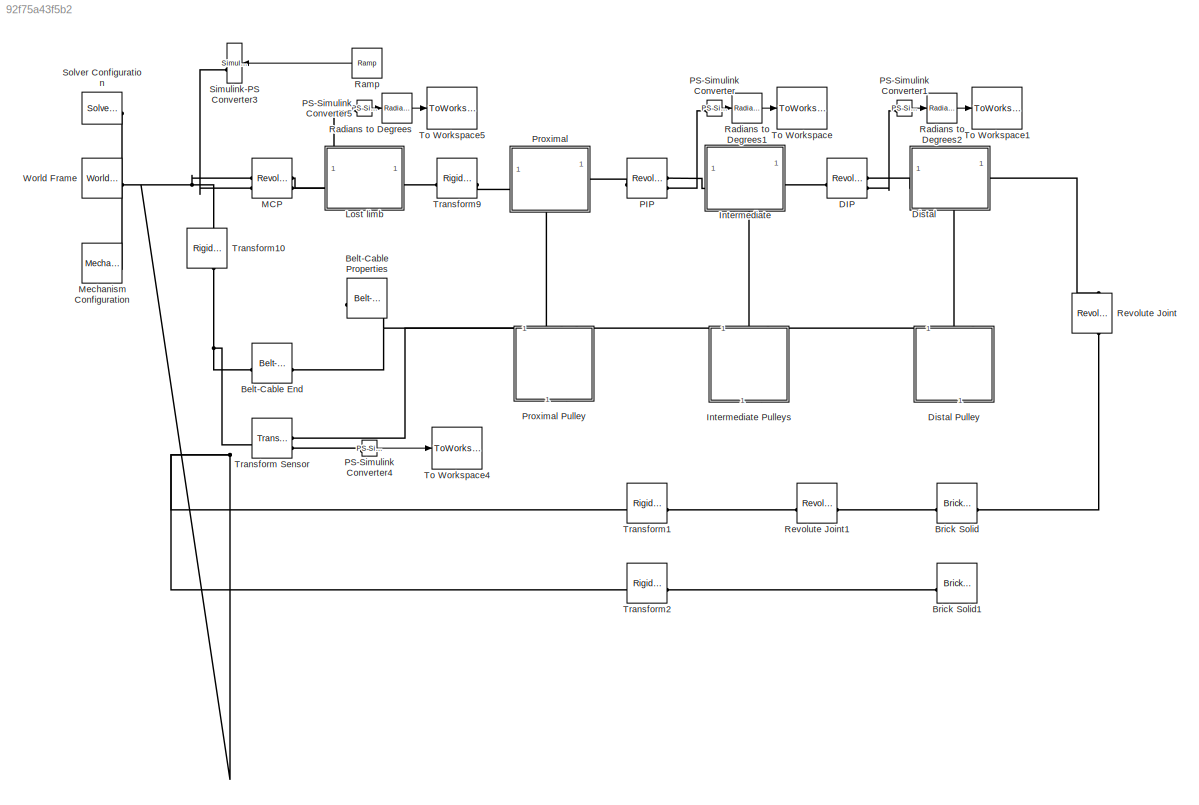
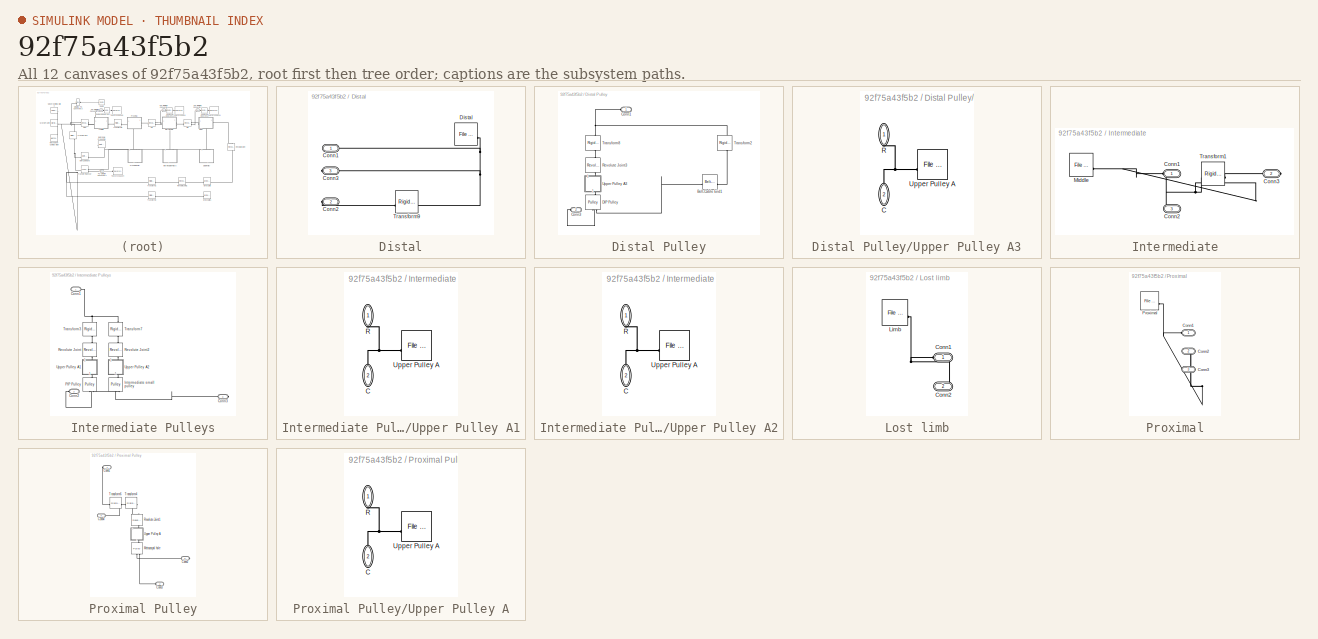
[diagram: thumbnail index - all 12 canvases of the model, root first then tree order]
MODEL slx_92f75a43f5b2
KIND model
CONFIG AbsTol = auto
CONFIG EnableMultiTasking = off
CONFIG FixedStep = 1e-3
CONFIG InitFcn = Offset = 2;\nspringRevPIP = 51.5+Offset;\nspringRevDIP = 51.5-Offset;
CONFIG MaxStep = auto
CONFIG MinStep = auto
CONFIG RelTol = 1e-3
CONFIG SampleTimeConstraint = Unconstrained
CONFIG SolverName = ode8
CONFIG StartTime = 0.0
CONFIG StopTime = 5
BLOCK [Reference] Belt-Cable End  REF=sm_lib/Belts and Cables/Belt-Cable End
  SourceBlock = sm_lib/Belts and Cables/Belt-Cable End
  SourceType = Belt-Cable End
BLOCK [Reference] Belt-Cable Properties  REF=sm_lib/Belts and Cables/Belt-Cable
Properties
  SourceBlock = sm_lib/Belts and Cables/Belt-Cable\nProperties
  SourceType = Belt-Cable\nProperties
BLOCK [Reference] Brick Solid  REF=sm_lib/Body Elements/Brick Solid
  NameLocation = top
  SourceBlock = sm_lib/Body Elements/Brick Solid
  SourceType = Brick Solid
BLOCK [Reference] Brick Solid1  REF=sm_lib/Body Elements/Brick Solid
  NameLocation = top
  SourceBlock = sm_lib/Body Elements/Brick Solid
  SourceType = Brick Solid
BLOCK [Reference] DIP  REF=sm_lib/Joints/Revolute Joint
  SourceBlock = sm_lib/Joints/Revolute Joint
  SourceType = Revolute Joint
BLOCK [SubSystem] Distal
  PortSchema = {"entries":[{"content":{"sides":[{"content":{"connectorIds":["LConn1"]},"type":"ConnectorPlacement.EquallySpacedRectSide","uuid":"b25b0000-92be-4936-a230-fbc0db946bc0"},{"content":{"connectorIds":["RConn1"],"side":"RIGHT"},"type":"ConnectorPlacement.EquallySpacedRectSide","uuid":"a8562f2c-ceca-422c-a6b7-bdec44f9ce3e"},{"content":{"side":"TOP"},"type":"ConnectorPlacement.EquallySpacedRectSide","uui...<+379ch>
  ShowPortLabels = none
BLOCK [SubSystem] Distal Pulley
  NameLocation = left
  PortSchema = {"entries":[{"content":{"sides":[{"content":{"connectorIds":["LConn1"]},"type":"ConnectorPlacement.EquallySpacedRectSide","uuid":"1863dc05-f25c-416d-a169-01e96b7ec287"},{"content":{"side":"RIGHT"},"type":"ConnectorPlacement.EquallySpacedRectSide","uuid":"4051f64d-96d7-4355-aba6-70d51236bce4"},{"content":{"connectorIds":["LConn2"],"side":"TOP"},"type":"ConnectorPlacement.EquallySpacedRectSide","uui...<+353ch>
  ShowPortLabels = none
BLOCK [Reference] Distal Pulley/Belt-Cable End1  REF=sm_lib/Belts and Cables/Belt-Cable End
  SourceBlock = sm_lib/Belts and Cables/Belt-Cable End
  SourceType = Belt-Cable End
BLOCK [PMIOPort] Distal Pulley/Conn1
  Side = Left
BLOCK [PMIOPort] Distal Pulley/Conn3
  Port = 2
  Side = Left
BLOCK [Reference] Distal Pulley/DIP Pulley  REF=sm_lib/Belts and Cables/Pulley
  NameLocation = left
  SourceBlock = sm_lib/Belts and Cables/Pulley
  SourceType = Pulley
BLOCK [Reference] Distal Pulley/Revolute Joint3  REF=sm_lib/Joints/Revolute Joint
  NameLocation = left
  SourceBlock = sm_lib/Joints/Revolute Joint
  SourceType = Revolute Joint
BLOCK [Reference] Distal Pulley/Transform2  REF=sm_lib/Frames and
Transforms/Rigid
Transform
  NameLocation = right
  SourceBlock = sm_lib/Frames and\nTransforms/Rigid\nTransform
  SourceType = Rigid\nTransform
BLOCK [Reference] Distal Pulley/Transform8  REF=sm_lib/Frames and
Transforms/Rigid
Transform
  NameLocation = right
  SourceBlock = sm_lib/Frames and\nTransforms/Rigid\nTransform
  SourceType = Rigid\nTransform
BLOCK [SubSystem] Distal Pulley/Upper Pulley A3
  NameLocation = right
BLOCK [PMIOPort] Distal Pulley/Upper Pulley A3/C
  NameLocation = left
  Port = 2
  Side = Right
BLOCK [PMIOPort] Distal Pulley/Upper Pulley A3/R
  NameLocation = left
  Side = Left
BLOCK [Reference] Distal Pulley/Upper Pulley A3/Upper Pulley A   REF=sm_lib/Body Elements/File Solid
  SourceBlock = sm_lib/Body Elements/File Solid
  SourceType = File Solid
BLOCK [PMIOPort] Distal/Conn1
  Side = Left
BLOCK [PMIOPort] Distal/Conn2
  Port = 2
  Side = Right
BLOCK [PMIOPort] Distal/Conn3
  Port = 3
  Side = Right
BLOCK [Reference] Distal/Distal  REF=sm_lib/Body Elements/File Solid
  SourceBlock = sm_lib/Body Elements/File Solid
  SourceType = File Solid
BLOCK [Reference] Distal/Transform9  REF=sm_lib/Frames and
Transforms/Rigid
Transform
  SourceBlock = sm_lib/Frames and\nTransforms/Rigid\nTransform
  SourceType = Rigid\nTransform
BLOCK [SubSystem] Intermediate
  PortSchema = {"entries":[{"content":{"sides":[{"content":{"connectorIds":["LConn1"]},"type":"ConnectorPlacement.EquallySpacedRectSide","uuid":"1863dc05-f25c-416d-a169-01e96b7ec287"},{"content":{"connectorIds":["RConn1"],"side":"RIGHT"},"type":"ConnectorPlacement.EquallySpacedRectSide","uuid":"4051f64d-96d7-4355-aba6-70d51236bce4"},{"content":{"side":"TOP"},"type":"ConnectorPlacement.EquallySpacedRectSide","uui...<+379ch>
  ShowPortLabels = none
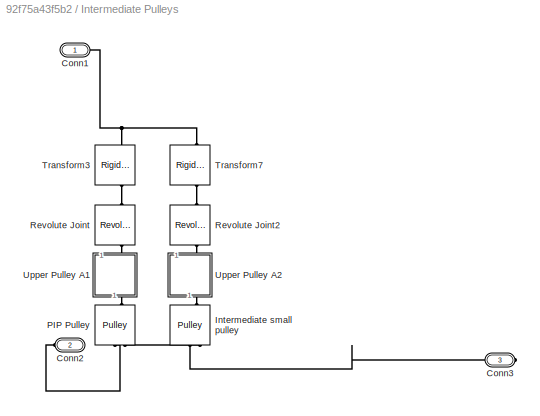
BLOCK [SubSystem] Intermediate Pulleys
  NameLocation = left
  PortSchema = {"entries":[{"content":{"sides":[{"content":{"connectorIds":["LConn1"]},"type":"ConnectorPlacement.EquallySpacedRectSide","uuid":"1863dc05-f25c-416d-a169-01e96b7ec287"},{"content":{"side":"RIGHT"},"type":"ConnectorPlacement.EquallySpacedRectSide","uuid":"4051f64d-96d7-4355-aba6-70d51236bce4"},{"content":{"connectorIds":["LConn2"],"side":"TOP"},"type":"ConnectorPlacement.EquallySpacedRectSide","uui...<+379ch>
  ShowPortLabels = none
BLOCK [PMIOPort] Intermediate Pulleys/Conn1
  Side = Left
BLOCK [PMIOPort] Intermediate Pulleys/Conn2
  Port = 2
  Side = Left
BLOCK [PMIOPort] Intermediate Pulleys/Conn3
  Port = 3
  Side = Right
BLOCK [Reference] Intermediate Pulleys/Intermediate small pulley  REF=sm_lib/Belts and Cables/Pulley
  NameLocation = left
  SourceBlock = sm_lib/Belts and Cables/Pulley
  SourceType = Pulley
BLOCK [Reference] Intermediate Pulleys/PIP Pulley  REF=sm_lib/Belts and Cables/Pulley
  NameLocation = left
  SourceBlock = sm_lib/Belts and Cables/Pulley
  SourceType = Pulley
BLOCK [Reference] Intermediate Pulleys/Revolute Joint  REF=sm_lib/Joints/Revolute Joint
  NameLocation = left
  SourceBlock = sm_lib/Joints/Revolute Joint
  SourceType = Revolute Joint
BLOCK [Reference] Intermediate Pulleys/Revolute Joint2  REF=sm_lib/Joints/Revolute Joint
  NameLocation = left
  SourceBlock = sm_lib/Joints/Revolute Joint
  SourceType = Revolute Joint
BLOCK [Reference] Intermediate Pulleys/Transform3  REF=sm_lib/Frames and
Transforms/Rigid
Transform
  NameLocation = right
  SourceBlock = sm_lib/Frames and\nTransforms/Rigid\nTransform
  SourceType = Rigid\nTransform
BLOCK [Reference] Intermediate Pulleys/Transform7  REF=sm_lib/Frames and
Transforms/Rigid
Transform
  NameLocation = right
  SourceBlock = sm_lib/Frames and\nTransforms/Rigid\nTransform
  SourceType = Rigid\nTransform
BLOCK [SubSystem] Intermediate Pulleys/Upper Pulley A1
  NameLocation = right
BLOCK [PMIOPort] Intermediate Pulleys/Upper Pulley A1/C
  NameLocation = left
  Port = 2
  Side = Right
BLOCK [PMIOPort] Intermediate Pulleys/Upper Pulley A1/R
  NameLocation = left
  Side = Left
BLOCK [Reference] Intermediate Pulleys/Upper Pulley A1/Upper Pulley A   REF=sm_lib/Body Elements/File Solid
  SourceBlock = sm_lib/Body Elements/File Solid
  SourceType = File Solid
BLOCK [SubSystem] Intermediate Pulleys/Upper Pulley A2
  NameLocation = right
BLOCK [PMIOPort] Intermediate Pulleys/Upper Pulley A2/C
  NameLocation = left
  Port = 2
  Side = Right
BLOCK [PMIOPort] Intermediate Pulleys/Upper Pulley A2/R
  NameLocation = left
  Side = Left
BLOCK [Reference] Intermediate Pulleys/Upper Pulley A2/Upper Pulley A   REF=sm_lib/Body Elements/File Solid
  SourceBlock = sm_lib/Body Elements/File Solid
  SourceType = File Solid
BLOCK [PMIOPort] Intermediate/Conn1
  Side = Left
BLOCK [PMIOPort] Intermediate/Conn2
  Port = 3
  Side = Right
BLOCK [PMIOPort] Intermediate/Conn3
  Port = 2
  Side = Right
BLOCK [Reference] Intermediate/Middle  REF=sm_lib/Body Elements/File Solid
  SourceBlock = sm_lib/Body Elements/File Solid
  SourceType = File Solid
BLOCK [Reference] Intermediate/Transform1  REF=sm_lib/Frames and
Transforms/Rigid
Transform
  SourceBlock = sm_lib/Frames and\nTransforms/Rigid\nTransform
  SourceType = Rigid\nTransform
BLOCK [SubSystem] Lost limb
  ShowPortLabels = none
BLOCK [PMIOPort] Lost limb/Conn1
  Side = Left
BLOCK [PMIOPort] Lost limb/Conn2
  Port = 2
  Side = Right
BLOCK [Reference] Lost limb/Limb  REF=sm_lib/Body Elements/File Solid
  SourceBlock = sm_lib/Body Elements/File Solid
  SourceType = File Solid
BLOCK [Reference] MCP  REF=sm_lib/Joints/Revolute Joint
  SourceBlock = sm_lib/Joints/Revolute Joint
  SourceType = Revolute Joint
BLOCK [Reference] Mechanism Configuration  REF=sm_lib/Utilities/Mechanism
Configuration
  SourceBlock = sm_lib/Utilities/Mechanism\nConfiguration
  SourceType = Mechanism\nConfiguration
BLOCK [Reference] PIP  REF=sm_lib/Joints/Revolute Joint
  SourceBlock = sm_lib/Joints/Revolute Joint
  SourceType = Revolute Joint
BLOCK [Reference] PS-Simulink Converter  REF=nesl_utility/PS-Simulink
Converter
  SourceBlock = nesl_utility/PS-Simulink\nConverter
  SourceType = PS-Simulink\nConverter
BLOCK [Reference] PS-Simulink Converter1  REF=nesl_utility/PS-Simulink
Converter
  SourceBlock = nesl_utility/PS-Simulink\nConverter
  SourceType = PS-Simulink\nConverter
BLOCK [Reference] PS-Simulink Converter4  REF=nesl_utility/PS-Simulink
Converter
  SourceBlock = nesl_utility/PS-Simulink\nConverter
  SourceType = PS-Simulink\nConverter
BLOCK [Reference] PS-Simulink Converter5  REF=nesl_utility/PS-Simulink
Converter
  SourceBlock = nesl_utility/PS-Simulink\nConverter
  SourceType = PS-Simulink\nConverter
BLOCK [SubSystem] Proximal
  PortSchema = {"entries":[{"content":{"sides":[{"content":{"connectorIds":["LConn1"]},"type":"ConnectorPlacement.EquallySpacedRectSide","uuid":"1863dc05-f25c-416d-a169-01e96b7ec287"},{"content":{"connectorIds":["RConn1"],"side":"RIGHT"},"type":"ConnectorPlacement.EquallySpacedRectSide","uuid":"4051f64d-96d7-4355-aba6-70d51236bce4"},{"content":{"side":"TOP"},"type":"ConnectorPlacement.EquallySpacedRectSide","uui...<+379ch>
  ShowPortLabels = none
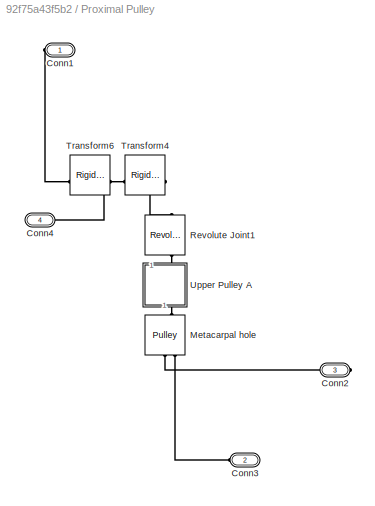
BLOCK [SubSystem] Proximal Pulley
  NameLocation = left
  PortSchema = {"entries":[{"content":{"sides":[{"content":{"connectorIds":["LConn1"]},"type":"ConnectorPlacement.EquallySpacedRectSide","uuid":"1863dc05-f25c-416d-a169-01e96b7ec287"},{"content":{"side":"RIGHT"},"type":"ConnectorPlacement.EquallySpacedRectSide","uuid":"4051f64d-96d7-4355-aba6-70d51236bce4"},{"content":{"connectorIds":["LConn2","LConn3"],"side":"TOP"},"type":"ConnectorPlacement.EquallySpacedRectS...<+388ch>
  ShowPortLabels = none
BLOCK [PMIOPort] Proximal Pulley/Conn1
  Side = Left
BLOCK [PMIOPort] Proximal Pulley/Conn2
  Port = 3
  Side = Right
BLOCK [PMIOPort] Proximal Pulley/Conn3
  Port = 2
  Side = Left
BLOCK [PMIOPort] Proximal Pulley/Conn4
  Port = 4
  Side = Left
BLOCK [Reference] Proximal Pulley/Metacarpal hole  REF=sm_lib/Belts and Cables/Pulley
  NameLocation = left
  SourceBlock = sm_lib/Belts and Cables/Pulley
  SourceType = Pulley
BLOCK [Reference] Proximal Pulley/Revolute Joint1  REF=sm_lib/Joints/Revolute Joint
  NameLocation = left
  SourceBlock = sm_lib/Joints/Revolute Joint
  SourceType = Revolute Joint
BLOCK [Reference] Proximal Pulley/Transform4  REF=sm_lib/Frames and
Transforms/Rigid
Transform
  SourceBlock = sm_lib/Frames and\nTransforms/Rigid\nTransform
  SourceType = Rigid\nTransform
BLOCK [Reference] Proximal Pulley/Transform6  REF=sm_lib/Frames and
Transforms/Rigid
Transform
  SourceBlock = sm_lib/Frames and\nTransforms/Rigid\nTransform
  SourceType = Rigid\nTransform
BLOCK [SubSystem] Proximal Pulley/Upper Pulley A
  NameLocation = right
BLOCK [PMIOPort] Proximal Pulley/Upper Pulley A/C
  NameLocation = left
  Port = 2
  Side = Right
BLOCK [PMIOPort] Proximal Pulley/Upper Pulley A/R
  NameLocation = left
  Side = Left
BLOCK [Reference] Proximal Pulley/Upper Pulley A/Upper Pulley A   REF=sm_lib/Body Elements/File Solid
  SourceBlock = sm_lib/Body Elements/File Solid
  SourceType = File Solid
BLOCK [PMIOPort] Proximal/Conn1
  Side = Left
BLOCK [PMIOPort] Proximal/Conn2
  Port = 2
  Side = Right
BLOCK [PMIOPort] Proximal/Conn3
  Port = 3
  Side = Right
BLOCK [Reference] Proximal/Proximal  REF=sm_lib/Body Elements/File Solid
  SourceBlock = sm_lib/Body Elements/File Solid
  SourceType = File Solid
BLOCK [Reference] Radians to Degrees  REF=simulink_extras/Transformations/Radians
to Degrees
  SourceBlock = simulink_extras/Transformations/Radians\nto Degrees
  SourceType = RadiansToDegrees
BLOCK [Reference] Radians to Degrees1  REF=simulink_extras/Transformations/Radians
to Degrees
  SourceBlock = simulink_extras/Transformations/Radians\nto Degrees
  SourceType = RadiansToDegrees
BLOCK [Reference] Radians to Degrees2  REF=simulink_extras/Transformations/Radians
to Degrees
  SourceBlock = simulink_extras/Transformations/Radians\nto Degrees
  SourceType = RadiansToDegrees
BLOCK [Reference] Ramp  REF=simulink/Sources/Ramp
  SourceBlock = simulink/Sources/Ramp
  SourceType = Ramp
BLOCK [Reference] Revolute Joint  REF=sm_lib/Joints/Revolute Joint
  NameLocation = left
  SourceBlock = sm_lib/Joints/Revolute Joint
  SourceType = Revolute Joint
BLOCK [Reference] Revolute Joint1  REF=sm_lib/Joints/Revolute Joint
  NameLocation = top
  SourceBlock = sm_lib/Joints/Revolute Joint
  SourceType = Revolute Joint
BLOCK [Reference] Simulink-PS Converter3  REF=nesl_utility/Simulink-PS
Converter
  SourceBlock = nesl_utility/Simulink-PS\nConverter
  SourceType = Simulink-PS\nConverter
BLOCK [Reference] Solver Configuration  REF=nesl_utility/Solver
Configuration
  SourceBlock = nesl_utility/Solver\nConfiguration
  SourceType = Solver\nConfiguration
BLOCK [ToWorkspace] To Workspace
  MaxDataPoints = inf
  SampleTime = -1
  Save2DSignal = 2-D array (concatenate along first dimension)
  VariableName = PIPDeg
BLOCK [ToWorkspace] To Workspace1
  MaxDataPoints = inf
  SampleTime = -1
  Save2DSignal = 2-D array (concatenate along first dimension)
  VariableName = DIPDeg
BLOCK [ToWorkspace] To Workspace4
  MaxDataPoints = inf
  SampleTime = 10
  Save2DSignal = 2-D array (concatenate along first dimension)
  VariableName = CableDistance
BLOCK [ToWorkspace] To Workspace5
  MaxDataPoints = inf
  SampleTime = -1
  Save2DSignal = 2-D array (concatenate along first dimension)
  VariableName = MCPDeg
BLOCK [Reference] Transform Sensor  REF=sm_lib/Frames and
Transforms/Transform
Sensor
  SourceBlock = sm_lib/Frames and\nTransforms/Transform\nSensor
  SourceType = Transform\nSensor
BLOCK [Reference] Transform1  REF=sm_lib/Frames and
Transforms/Rigid
Transform
  NameLocation = top
  SourceBlock = sm_lib/Frames and\nTransforms/Rigid\nTransform
  SourceType = Rigid\nTransform
BLOCK [Reference] Transform10  REF=sm_lib/Frames and
Transforms/Rigid
Transform
  NameLocation = left
  SourceBlock = sm_lib/Frames and\nTransforms/Rigid\nTransform
  SourceType = Rigid\nTransform
BLOCK [Reference] Transform2  REF=sm_lib/Frames and
Transforms/Rigid
Transform
  NameLocation = top
  SourceBlock = sm_lib/Frames and\nTransforms/Rigid\nTransform
  SourceType = Rigid\nTransform
BLOCK [Reference] Transform9  REF=sm_lib/Frames and
Transforms/Rigid
Transform
  SourceBlock = sm_lib/Frames and\nTransforms/Rigid\nTransform
  SourceType = Rigid\nTransform
BLOCK [Reference] World Frame  REF=sm_lib/Frames and
Transforms/World Frame
  SourceBlock = sm_lib/Frames and\nTransforms/World Frame
  SourceType = World Frame
LINE PS-Simulink Converter1:1 -> Radians to Degrees2:1
LINE PS-Simulink Converter4:1 -> To Workspace4:1
LINE PS-Simulink Converter5:1 -> Radians to Degrees:1
LINE PS-Simulink Converter:1 -> Radians to Degrees1:1
LINE Radians to Degrees1:1 -> To Workspace:1
LINE Radians to Degrees2:1 -> To Workspace1:1
LINE Radians to Degrees:1 -> To Workspace5:1
LINE Ramp:1 -> Simulink-PS Converter3:1
PNET net1: Belt-Cable End:LConn1 -- Transform Sensor:LConn1 -- Transform10:RConn1
PNET net2: Belt-Cable End:RConn1 -- Belt-Cable Properties:LConn1 -- Proximal Pulley:LConn2
PLINE Brick Solid1:LConn1 -- Transform2:RConn1
PLINE Brick Solid:LConn1 -- Revolute Joint1:RConn1
PLINE Brick Solid:RConn1 -- Revolute Joint:RConn1
PLINE DIP:LConn1 -- Intermediate:RConn1
PLINE DIP:RConn1 -- Distal:LConn1
PLINE DIP:RConn2 -- PS-Simulink Converter1:LConn1
PLINE Distal Pulley/Belt-Cable End1:LConn1 -- Distal Pulley/Transform2:RConn1
PLINE Distal Pulley/Belt-Cable End1:RConn1 -- Distal Pulley/DIP Pulley:RConn2
PNET net3: Distal Pulley/Conn1:RConn1 -- Distal Pulley/Transform2:LConn1 -- Distal Pulley/Transform8:LConn1
PLINE Distal Pulley/Conn3:RConn1 -- Distal Pulley/DIP Pulley:RConn1
PLINE Distal Pulley/DIP Pulley:LConn1 -- Distal Pulley/Upper Pulley A3:RConn1
PLINE Distal Pulley/Revolute Joint3:LConn1 -- Distal Pulley/Transform8:RConn1
PLINE Distal Pulley/Revolute Joint3:RConn1 -- Distal Pulley/Upper Pulley A3:LConn1
PNET net4: Distal Pulley/Upper Pulley A3/C:RConn1 -- Distal Pulley/Upper Pulley A3/R:RConn1 -- Distal Pulley/Upper Pulley A3/Upper Pulley A :LConn1
PLINE Distal Pulley:LConn1 -- Distal:RConn2
PLINE Distal Pulley:LConn2 -- Intermediate Pulleys:RConn1
PNET net5: Distal/Conn1:RConn1 -- Distal/Conn3:RConn1 -- Distal/Distal:RConn1 -- Distal/Transform9:LConn1
PLINE Distal/Conn2:RConn1 -- Distal/Transform9:RConn1
PLINE Distal:RConn1 -- Revolute Joint:LConn1
PNET net6: Intermediate Pulleys/Conn1:RConn1 -- Intermediate Pulleys/Transform3:LConn1 -- Intermediate Pulleys/Transform7:LConn1
PLINE Intermediate Pulleys/Conn2:RConn1 -- Intermediate Pulleys/PIP Pulley:RConn1
PLINE Intermediate Pulleys/Conn3:RConn1 -- Intermediate Pulleys/Intermediate small pulley:RConn1
PLINE Intermediate Pulleys/Intermediate small pulley:LConn1 -- Intermediate Pulleys/Upper Pulley A2:RConn1
PLINE Intermediate Pulleys/Intermediate small pulley:RConn2 -- Intermediate Pulleys/PIP Pulley:RConn2
PLINE Intermediate Pulleys/PIP Pulley:LConn1 -- Intermediate Pulleys/Upper Pulley A1:RConn1
PLINE Intermediate Pulleys/Revolute Joint2:LConn1 -- Intermediate Pulleys/Transform7:RConn1
PLINE Intermediate Pulleys/Revolute Joint2:RConn1 -- Intermediate Pulleys/Upper Pulley A2:LConn1
PLINE Intermediate Pulleys/Revolute Joint:LConn1 -- Intermediate Pulleys/Transform3:RConn1
PLINE Intermediate Pulleys/Revolute Joint:RConn1 -- Intermediate Pulleys/Upper Pulley A1:LConn1
PNET net7: Intermediate Pulleys/Upper Pulley A1/C:RConn1 -- Intermediate Pulleys/Upper Pulley A1/R:RConn1 -- Intermediate Pulleys/Upper Pulley A1/Upper Pulley A :LConn1
PNET net8: Intermediate Pulleys/Upper Pulley A2/C:RConn1 -- Intermediate Pulleys/Upper Pulley A2/R:RConn1 -- Intermediate Pulleys/Upper Pulley A2/Upper Pulley A :LConn1
PLINE Intermediate Pulleys:LConn1 -- Intermediate:RConn2
PLINE Intermediate Pulleys:LConn2 -- Proximal Pulley:RConn1
PNET net9: Intermediate/Conn1:RConn1 -- Intermediate/Conn2:RConn1 -- Intermediate/Middle:RConn1 -- Intermediate/Transform1:LConn1
PLINE Intermediate/Conn3:RConn1 -- Intermediate/Transform1:RConn1
PLINE Intermediate:LConn1 -- PIP:RConn1
PNET net10: Lost limb/Conn1:RConn1 -- Lost limb/Conn2:RConn1 -- Lost limb/Limb:RConn1
PLINE Lost limb:LConn1 -- MCP:RConn1
PLINE Lost limb:RConn1 -- Transform9:LConn1
PNET net11: MCP:LConn1 -- Mechanism Configuration:RConn1 -- Solver Configuration:RConn1 -- Transform10:LConn1 -- Transform1:LConn1 -- Transform2:LConn1 -- World Frame:RConn1
PLINE MCP:LConn2 -- Simulink-PS Converter3:RConn1
PLINE MCP:RConn2 -- PS-Simulink Converter5:LConn1
PLINE PIP:LConn1 -- Proximal:RConn1
PLINE PIP:RConn2 -- PS-Simulink Converter:LConn1
PLINE PS-Simulink Converter4:LConn1 -- Transform Sensor:RConn2
PLINE Proximal Pulley/Conn1:RConn1 -- Proximal Pulley/Transform6:LConn1
PLINE Proximal Pulley/Conn2:RConn1 -- Proximal Pulley/Metacarpal hole:RConn1
PLINE Proximal Pulley/Conn3:RConn1 -- Proximal Pulley/Metacarpal hole:RConn2
PNET net12: Proximal Pulley/Conn4:RConn1 -- Proximal Pulley/Transform4:LConn1 -- Proximal Pulley/Transform6:RConn1
PLINE Proximal Pulley/Metacarpal hole:LConn1 -- Proximal Pulley/Upper Pulley A:RConn1
PLINE Proximal Pulley/Revolute Joint1:LConn1 -- Proximal Pulley/Transform4:RConn1
PLINE Proximal Pulley/Revolute Joint1:RConn1 -- Proximal Pulley/Upper Pulley A:LConn1
PNET net13: Proximal Pulley/Upper Pulley A/C:RConn1 -- Proximal Pulley/Upper Pulley A/R:RConn1 -- Proximal Pulley/Upper Pulley A/Upper Pulley A :LConn1
PLINE Proximal Pulley:LConn1 -- Proximal:RConn2
PLINE Proximal Pulley:LConn3 -- Transform Sensor:RConn1
PNET net14: Proximal/Conn1:RConn1 -- Proximal/Conn2:RConn1 -- Proximal/Conn3:RConn1 -- Proximal/Proximal:RConn1
PLINE Proximal:LConn1 -- Transform9:RConn1
PLINE Revolute Joint1:LConn1 -- Transform1:RConn1
note: PNET lines group multi-terminal physical nets as a canonical sorted terminal list (undirected conserving connections); 2-terminal nets keep the pairwise PLINE form
